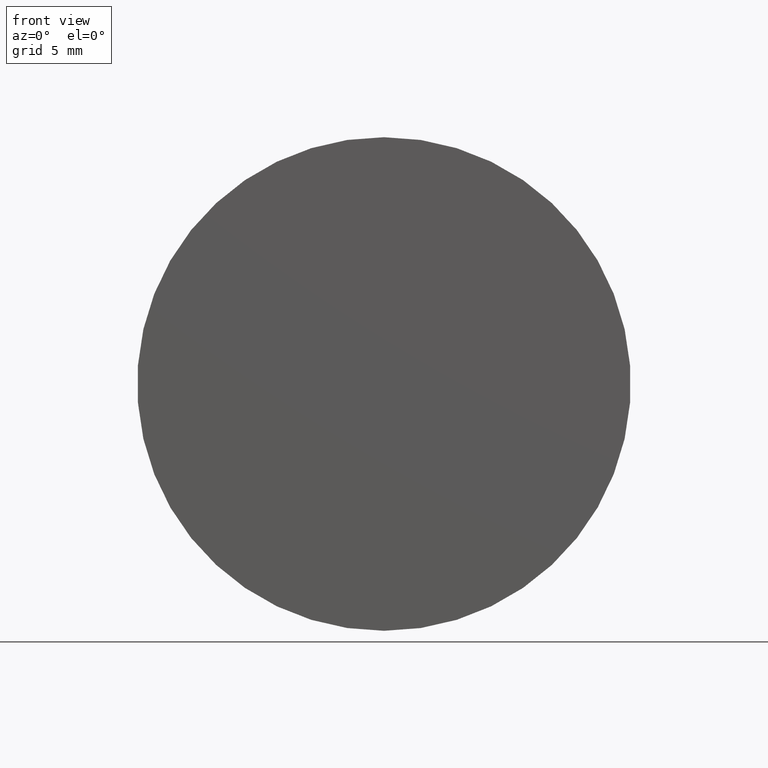
[diagram: clean part render]
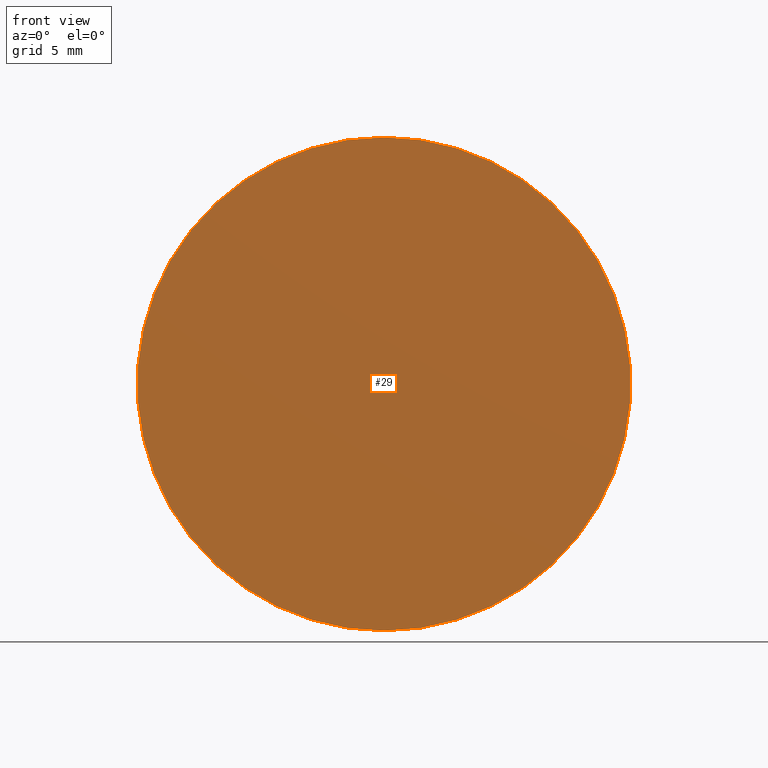
[diagram: same view with one face highlighted and labeled with its STEP entity id]
A machine part, front view. The second image highlights one B-rep face of the part: STEP entity #29.
In plain terms, the highlighted planar face has unit normal (0, -1, 0).
Its self-contained STEP definition (entity closure, byte-faithful):
#5 = CIRCLE ( 'NONE', #148, 20.00000000000000000 ) ;
#12 = ORIENTED_EDGE ( 'NONE', *, *, #114, .F. ) ;
#16 = DIRECTION ( 'NONE',  ( -0.000000000000000000, 1.000000000000000000, -0.000000000000000000 ) ) ;
#23 = ORIENTED_EDGE ( 'NONE', *, *, #168, .F. ) ;
#29 = ADVANCED_FACE ( 'NONE', ( #43 ), #193, .T. ) ;
#31 = AXIS2_PLACEMENT_3D ( 'NONE', #56, #73, #177 ) ;
#36 = CIRCLE ( 'NONE', #102, 20.00000000000000000 ) ;
#43 = FACE_OUTER_BOUND ( 'NONE', #91, .T. ) ;
#56 = CARTESIAN_POINT ( 'NONE',  ( 0.000000000000000000, -1.224646799147353059E-15, 0.000000000000000000 ) ) ;
#61 = CARTESIAN_POINT ( 'NONE',  ( 0.000000000000000000, -3.469446951953614189E-15, 20.00000000000000000 ) ) ;
#73 = DIRECTION ( 'NONE',  ( 0.000000000000000000, -1.000000000000000000, 0.000000000000000000 ) ) ;
#78 = VERTEX_POINT ( 'NONE', #61 ) ;
#80 = CARTESIAN_POINT ( 'NONE',  ( 2.449293598294706513E-15, -3.469446951953614189E-15, -20.00000000000000000 ) ) ;
#91 = EDGE_LOOP ( 'NONE', ( #23, #12 ) ) ;
#102 = AXIS2_PLACEMENT_3D ( 'NONE', #154, #141, #117 ) ;
#114 = EDGE_CURVE ( 'NONE', #178, #78, #36, .T. ) ;
#117 = DIRECTION ( 'NONE',  ( 0.000000000000000000, 0.000000000000000000, 1.000000000000000000 ) ) ;
#126 = DIRECTION ( 'NONE',  ( 0.000000000000000000, 0.000000000000000000, 1.000000000000000000 ) ) ;
#141 = DIRECTION ( 'NONE',  ( -0.000000000000000000, 1.000000000000000000, -0.000000000000000000 ) ) ;
#148 = AXIS2_PLACEMENT_3D ( 'NONE', #155, #16, #126 ) ;
#154 = CARTESIAN_POINT ( 'NONE',  ( 0.000000000000000000, -3.469446951953614189E-15, 0.000000000000000000 ) ) ;
#155 = CARTESIAN_POINT ( 'NONE',  ( 0.000000000000000000, -3.469446951953614189E-15, 0.000000000000000000 ) ) ;
#168 = EDGE_CURVE ( 'NONE', #78, #178, #5, .T. ) ;
#177 = DIRECTION ( 'NONE',  ( 0.000000000000000000, -0.000000000000000000, -1.000000000000000000 ) ) ;
#178 = VERTEX_POINT ( 'NONE', #80 ) ;
#193 = PLANE ( 'NONE',  #31 ) ;